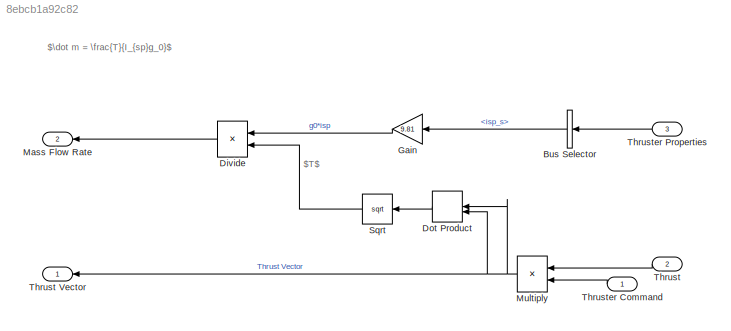
MODEL slx_8ebcb1a92c82
KIND model
CONFIG AbsTol = auto
CONFIG EnableMultiTasking = off
CONFIG FixedStep = dt
CONFIG MaxStep = auto
CONFIG MinStep = auto
CONFIG RelTol = 1e-3
CONFIG SampleTimeConstraint = Unconstrained
CONFIG SolverName = ode4
CONFIG StartTime = 0.0
CONFIG StopTime = 10.0
BLOCK [BusSelector] Bus Selector
  OutputSignals = isp_s
BLOCK [Product] Divide
  Inputs = /*
BLOCK [DotProduct] Dot Product
  InputSameDT = off
  OutDataTypeStr = Inherit: Inherit via internal rule
BLOCK [Gain] Gain
  Gain = 9.81
BLOCK [Outport] Mass Flow Rate
  Port = 2
BLOCK [Product] Multiply
  Inputs = **
BLOCK [Sqrt] Sqrt
BLOCK [Inport] Thrust
  Port = 2
  PortDimensions = 3
BLOCK [Outport] Thrust Vector
  PortDimensions = 3
BLOCK [Inport] Thruster Command
BLOCK [Inport] Thruster Properties
  OutDataTypeStr = Bus: thruster
  Port = 3
ANNOTATION (root): $T$
ANNOTATION (root): $\dot m = \frac{T}{I_{sp}g_0}$
LINE Bus Selector:1 -> Gain:1
LINE Divide:1 -> Mass Flow Rate:1
LINE Dot Product:1 -> Sqrt:1
LINE Gain:1 -> Divide:1
NET Multiply:1 -> Dot Product:1, Dot Product:2, Thrust Vector:1
LINE Sqrt:1 -> Divide:2
LINE Thrust:1 -> Multiply:1
LINE Thruster Command:1 -> Multiply:2
LINE Thruster Properties:1 -> Bus Selector:1
note: NET lines group one-source signal fan-out (src -> all destinations, sorted); 1:1 wires keep LINE
